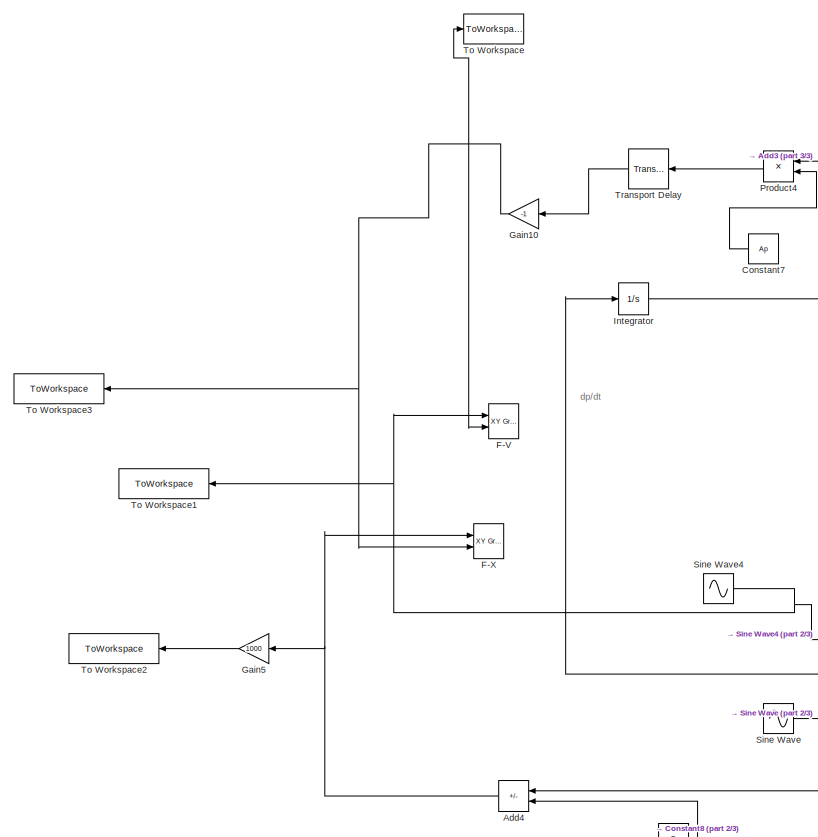
[diagram: root canvas - part 1/3, left side, full height]
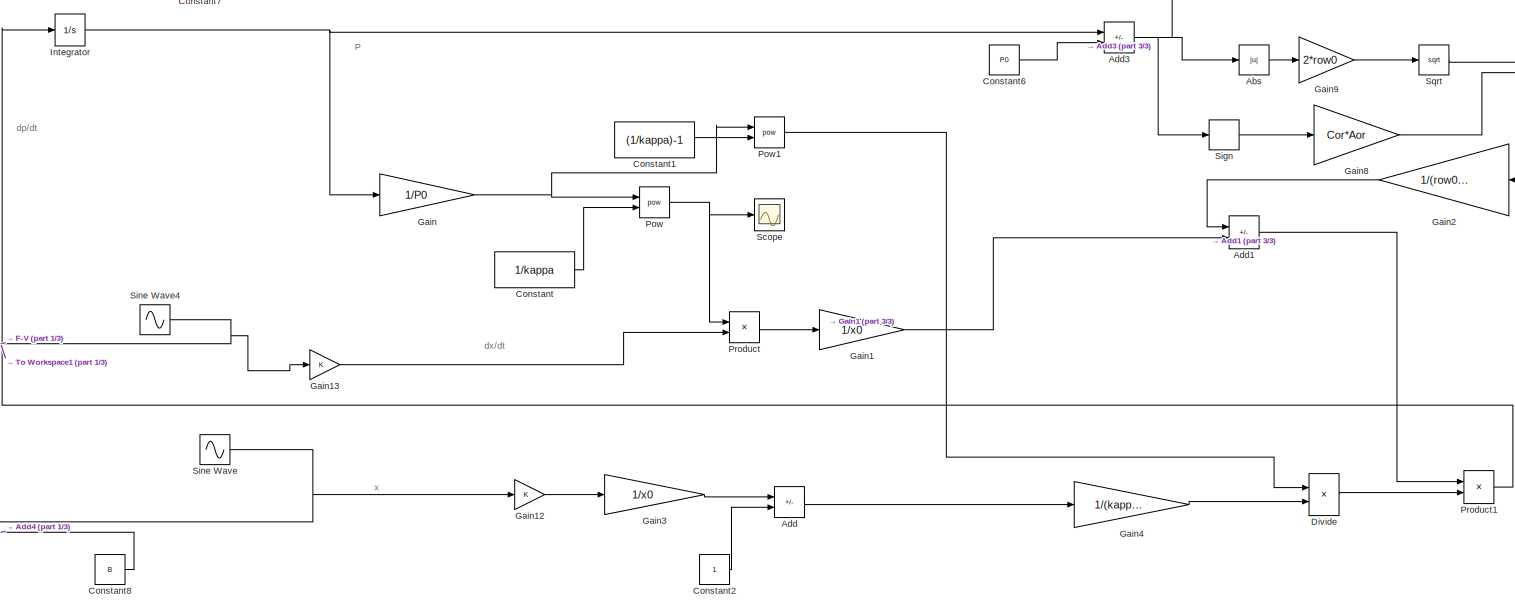
[diagram: root canvas - part 2/3, central region]
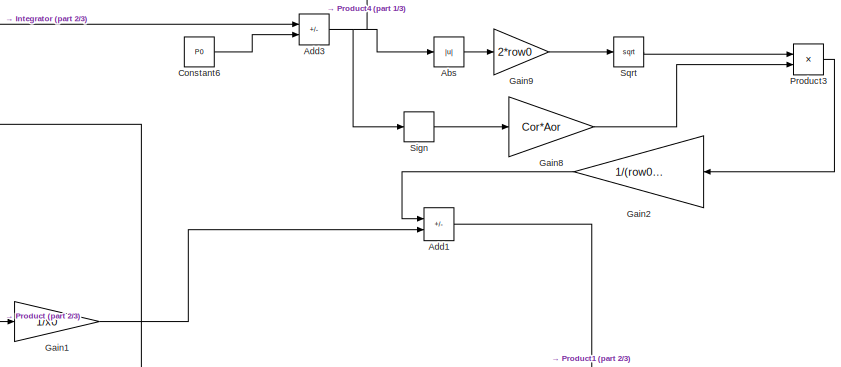
[diagram: root canvas - part 3/3, middle right region]
MODEL slx_141014ee9830
KIND model
CONFIG AbsTol = auto
CONFIG EnableMultiTasking = off
CONFIG FixedStep = 0.002
CONFIG InitFcn = Ao=(0.70*0.001)^2*pi/4;\n\n\n\nAr=0.38*10^-6;\nAor=0.1*10^-6;\nAp=(32.50*0.001)^2*pi/4;\n\nkappaaa=1.4-1.4*(Aor/Ap);\n\nkappa=1.4;\nx0=0.042;\nP0=101325;\nrow0=1.1841;\nT=0.005;\nCor=0.8;\n\nFmax=15;\nXmax=0.004;\nVmax=0.1;\nB=0;\n
CONFIG MaxStep = auto
CONFIG MinStep = auto
CONFIG RelTol = 1e-3
CONFIG SampleTimeConstraint = Unconstrained
CONFIG Solver = ode8
CONFIG SolverName = ode8
CONFIG StartTime = 0.0
CONFIG StopTime = 5
BLOCK [Abs] Abs
  SaturateOnIntegerOverflow = off
BLOCK [Sum] Add
  IconShape = rectangular
  Inputs = -+
  Ports = [2, 1]
BLOCK [Sum] Add1
  IconShape = rectangular
  Inputs = -+
  Ports = [2, 1]
BLOCK [Sum] Add3
  IconShape = rectangular
  Inputs = +-
  Ports = [2, 1]
BLOCK [Sum] Add4
  IconShape = rectangular
  Inputs = +-
  Ports = [2, 1]
BLOCK [Constant] Constant
  Value = 1/kappa
BLOCK [Constant] Constant1
  Value = (1/kappa)-1
BLOCK [Constant] Constant2
BLOCK [Constant] Constant6
  Value = P0
BLOCK [Constant] Constant7
  Value = Ap
BLOCK [Constant] Constant8
  Value = B
BLOCK [Product] Divide
  Inputs = **
  Ports = [2, 1]
BLOCK [Reference] F-V  REF=simulink/Sinks/XY Graph
  Ports = [2]
  SourceBlock = simulink/Sinks/XY Graph
  SourceProductBaseCode = SL
  SourceType = XY scope.
BLOCK [Reference] F-X  REF=simulink/Sinks/XY Graph
  Ports = [2]
  SourceBlock = simulink/Sinks/XY Graph
  SourceProductBaseCode = SL
  SourceType = XY scope.
BLOCK [Gain] Gain
  Gain = 1/P0
BLOCK [Gain] Gain1
  Gain = 1/x0
BLOCK [Gain] Gain10
  Gain = -1
BLOCK [Gain] Gain12
BLOCK [Gain] Gain13
BLOCK [Gain] Gain2
  Gain = 1/(row0*Ap*x0)
BLOCK [Gain] Gain3
  Gain = 1/x0
BLOCK [Gain] Gain4
  Gain = 1/(kappa*P0)
BLOCK [Gain] Gain5
  Gain = 1000
BLOCK [Gain] Gain8
  Gain = Cor*Aor
BLOCK [Gain] Gain9
  Gain = 2*row0
BLOCK [Integrator] Integrator
  InitialCondition = 101325
  Ports = [1, 1]
BLOCK [Math] Pow
  Operator = pow
  OutputSignalType = real
  Ports = [2, 1]
  RndMeth = Zero
  SignedPower = on
BLOCK [Math] Pow1
  Operator = pow
  OutputSignalType = real
  Ports = [2, 1]
  RndMeth = Zero
  SignedPower = on
BLOCK [Product] Product
  Ports = [2, 1]
BLOCK [Product] Product1
  Inputs = */
  Ports = [2, 1]
BLOCK [Product] Product3
  Ports = [2, 1]
BLOCK [Product] Product4
  Ports = [2, 1]
BLOCK [Scope] Scope
  Floating = off
  NumInputPorts = 1
  Ports = [1]
  ScopeSpecificationString = Simulink.scopes.TimeScopeBlockCfg('CurrentConfiguration', extmgr.ConfigurationSet(extmgr.Configuration('Core','General UI',true),extmgr.Configuration('Core','Source UI',true),extmgr.Configuration('Sources','WiredSimulink',true,'DataLoggingVariableName','ScopeData1'),extmgr.Configuration('Visuals','Time Domain',true,'SerializedDisplays',{struct('MinYLimReal','0.90871','MaxYLimReal','1.09221','YLabe...<+1360ch>
BLOCK [Signum] Sign
BLOCK [Sin] Sine Wave
  Amplitude = 0.003
  Bias = B
  Frequency = 2*pi*5
  Ports = [0, 1]
  SampleTime = 0
BLOCK [Sin] Sine Wave4
  Amplitude = 0.003*2*pi*5
  Bias = B
  Frequency = 2*pi*5
  Phase = pi/2
  Ports = [0, 1]
  SampleTime = 0
BLOCK [Sqrt] Sqrt
BLOCK [ToWorkspace] To Workspace
  FixptAsFi = on
  MaxDataPoints = inf
  Ports = [1]
  SampleTime = -1
  VariableName = force
BLOCK [ToWorkspace] To Workspace1
  FixptAsFi = on
  MaxDataPoints = inf
  Ports = [1]
  SampleTime = -1
  SaveFormat = Timeseries
  VariableName = V
BLOCK [ToWorkspace] To Workspace2
  FixptAsFi = on
  MaxDataPoints = inf
  Ports = [1]
  SampleTime = -1
  SaveFormat = Timeseries
  VariableName = X
BLOCK [ToWorkspace] To Workspace3
  FixptAsFi = on
  MaxDataPoints = inf
  Ports = [1]
  SampleTime = -1
  SaveFormat = Timeseries
  VariableName = F
BLOCK [TransportDelay] Transport Delay
  Commented = through
  DelayTime = 0
  Ports = [1, 1]
ANNOTATION (root): P
ANNOTATION (root): dp/dt
ANNOTATION (root): dx/dt
ANNOTATION (root): x
LINE Abs:1 -> Gain9:1
LINE Add1:1 -> Product1:1
NET Add3:1 -> Abs:1, Product4:1, Sign:1
NET Add4:1 -> F-X:1, Gain5:1
LINE Add:1 -> Gain4:1
LINE Constant1:1 -> Pow1:2
LINE Constant2:1 -> Add:2
LINE Constant6:1 -> Add3:2
LINE Constant7:1 -> Product4:2
LINE Constant8:1 -> Add4:2
LINE Constant:1 -> Pow:2
LINE Divide:1 -> Product1:2
NET Gain10:1 -> F-V:2, F-X:2, To Workspace3:1, To Workspace:1
LINE Gain12:1 -> Gain3:1
LINE Gain13:1 -> Product:2
LINE Gain1:1 -> Add1:2
LINE Gain2:1 -> Add1:1
LINE Gain3:1 -> Add:1
LINE Gain4:1 -> Divide:2
LINE Gain5:1 -> To Workspace2:1
LINE Gain8:1 -> Product3:2
LINE Gain9:1 -> Sqrt:1
NET Gain:1 -> Pow1:1, Pow:1
NET Integrator:1 -> Add3:1, Gain:1
LINE Pow1:1 -> Divide:1
NET Pow:1 -> Product:1, Scope:1
LINE Product1:1 -> Integrator:1
LINE Product3:1 -> Gain2:1
LINE Product4:1 -> Transport Delay:1
LINE Product:1 -> Gain1:1
LINE Sign:1 -> Gain8:1
NET Sine Wave4:1 -> F-V:1, Gain13:1, To Workspace1:1
NET Sine Wave:1 -> Add4:1, Gain12:1
LINE Sqrt:1 -> Product3:1
LINE Transport Delay:1 -> Gain10:1
note: NET lines group one-source signal fan-out (src -> all destinations, sorted); 1:1 wires keep LINE
